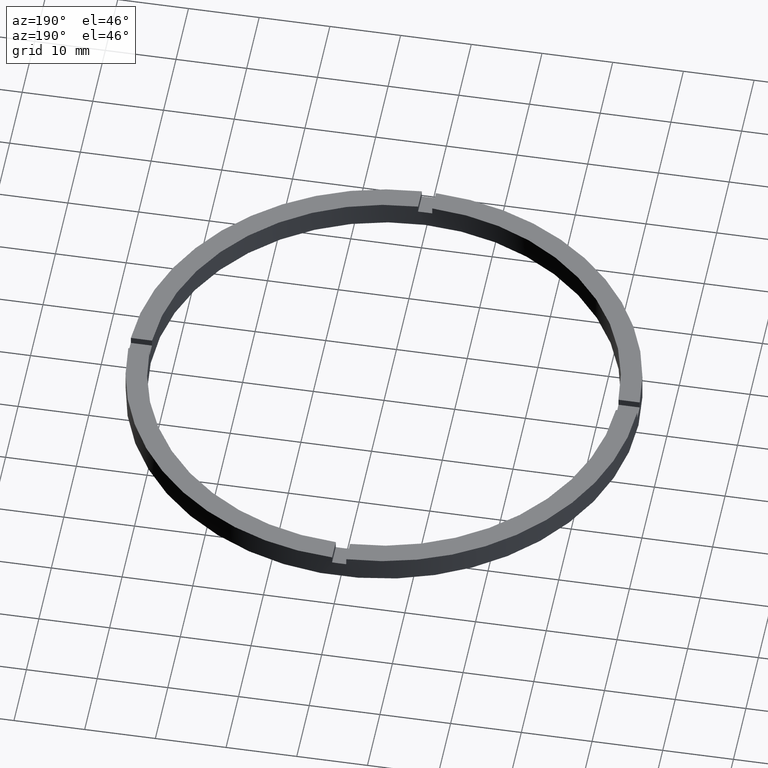
[diagram: clean part render]
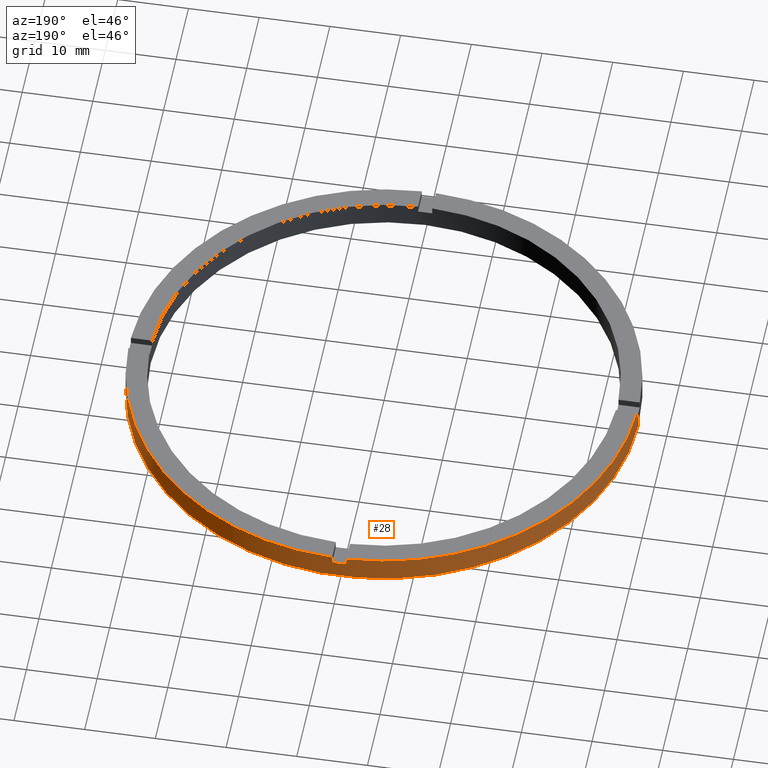
[diagram: same view with one face highlighted and labeled with its STEP entity id]
A machine part, auxiliary view. The second image highlights one B-rep face of the part: STEP entity #28.
In plain terms, the highlighted cylindrical surface (partial cylindrical patch) has radius 36 mm, axis along (-0, -0, -1).
Its self-contained STEP definition (entity closure, byte-faithful):
#4 = CARTESIAN_POINT ( 'NONE',  ( 0.000000000000000000, 0.000000000000000000, 2.500000000000000000 ) ) ;
#7 = CARTESIAN_POINT ( 'NONE',  ( 0.000000000000000000, 0.000000000000000000, 2.500000000000000000 ) ) ;
#14 = AXIS2_PLACEMENT_3D ( 'NONE', #195, #520, #364 ) ;
#16 = VECTOR ( 'NONE', #572, 1000.000000000000000 ) ;
#26 = LINE ( 'NONE', #672, #29 ) ;
#28 = ADVANCED_FACE ( 'NONE', ( #671 ), #126, .T. ) ;
#29 = VECTOR ( 'NONE', #751, 1000.000000000000000 ) ;
#36 = VERTEX_POINT ( 'NONE', #413 ) ;
#43 = DIRECTION ( 'NONE',  ( -0.000000000000000000, -0.000000000000000000, -1.000000000000000000 ) ) ;
#45 = VERTEX_POINT ( 'NONE', #705 ) ;
#48 = CARTESIAN_POINT ( 'NONE',  ( 0.000000000000000000, 0.000000000000000000, 3.500000000000000000 ) ) ;
#60 = LINE ( 'NONE', #779, #311 ) ;
#64 = LINE ( 'NONE', #729, #570 ) ;
#65 = DIRECTION ( 'NONE',  ( 1.000000000000000000, 0.000000000000000000, 0.000000000000000000 ) ) ;
#93 = DIRECTION ( 'NONE',  ( 0.000000000000000000, 0.000000000000000000, 1.000000000000000000 ) ) ;
#98 = DIRECTION ( 'NONE',  ( 1.000000000000000000, 0.000000000000000000, 0.000000000000000000 ) ) ;
#105 = ORIENTED_EDGE ( 'NONE', *, *, #264, .T. ) ;
#120 = DIRECTION ( 'NONE',  ( 1.000000000000000000, 0.000000000000000000, 0.000000000000000000 ) ) ;
#124 = CARTESIAN_POINT ( 'NONE',  ( -36.00000000000000000, 0.000000000000000000, 2.500000000000000000 ) ) ;
#126 = CYLINDRICAL_SURFACE ( 'NONE', #760, 36.00000000000000000 ) ;
#133 = AXIS2_PLACEMENT_3D ( 'NONE', #48, #363, #120 ) ;
#134 = ORIENTED_EDGE ( 'NONE', *, *, #521, .T. ) ;
#152 = ORIENTED_EDGE ( 'NONE', *, *, #497, .T. ) ;
#171 = CIRCLE ( 'NONE', #707, 36.00000000000000000 ) ;
#176 = VERTEX_POINT ( 'NONE', #367 ) ;
#177 = LINE ( 'NONE', #275, #701 ) ;
#195 = CARTESIAN_POINT ( 'NONE',  ( 0.000000000000000000, 0.000000000000000000, 3.500000000000000000 ) ) ;
#199 = CARTESIAN_POINT ( 'NONE',  ( -35.98610843089316091, 0.9999999999999729106, 3.500000000000000000 ) ) ;
#211 = ORIENTED_EDGE ( 'NONE', *, *, #597, .T. ) ;
#221 = CARTESIAN_POINT ( 'NONE',  ( 0.000000000000000000, 0.000000000000000000, 2.500000000000000000 ) ) ;
#224 = AXIS2_PLACEMENT_3D ( 'NONE', #397, #238, #98 ) ;
#238 = DIRECTION ( 'NONE',  ( 0.000000000000000000, 0.000000000000000000, 1.000000000000000000 ) ) ;
#245 = EDGE_CURVE ( 'NONE', #631, #176, #171, .T. ) ;
#264 = EDGE_CURVE ( 'NONE', #538, #45, #177, .T. ) ;
#269 = DIRECTION ( 'NONE',  ( 0.000000000000000000, 0.000000000000000000, 1.000000000000000000 ) ) ;
#274 = CIRCLE ( 'NONE', #133, 36.00000000000000000 ) ;
#275 = CARTESIAN_POINT ( 'NONE',  ( 0.9999999999999749090, 35.98610843089316091, 3.500000000000000000 ) ) ;
#286 = CARTESIAN_POINT ( 'NONE',  ( -1.000000000000025091, 35.98610843089315381, 3.500000000000000000 ) ) ;
#304 = DIRECTION ( 'NONE',  ( 1.000000000000000000, 0.000000000000000000, 0.000000000000000000 ) ) ;
#311 = VECTOR ( 'NONE', #43, 1000.000000000000000 ) ;
#315 = CIRCLE ( 'NONE', #629, 36.00000000000000000 ) ;
#333 = CARTESIAN_POINT ( 'NONE',  ( 0.9999999999999749090, 35.98610843089316091, 2.500000000000000000 ) ) ;
#347 = CARTESIAN_POINT ( 'NONE',  ( 36.00000000000000000, 4.408728476930470856E-15, 2.500000000000000000 ) ) ;
#352 = ORIENTED_EDGE ( 'NONE', *, *, #734, .F. ) ;
#354 = CARTESIAN_POINT ( 'NONE',  ( 35.98610843089316091, 0.9999999999998421263, 3.500000000000000000 ) ) ;
#363 = DIRECTION ( 'NONE',  ( 0.000000000000000000, 0.000000000000000000, 1.000000000000000000 ) ) ;
#364 = DIRECTION ( 'NONE',  ( 1.000000000000000000, 0.000000000000000000, 0.000000000000000000 ) ) ;
#366 = ORIENTED_EDGE ( 'NONE', *, *, #670, .F. ) ;
#367 = CARTESIAN_POINT ( 'NONE',  ( 35.98610843089316091, 0.9999999999998421263, 2.500000000000000000 ) ) ;
#373 = VERTEX_POINT ( 'NONE', #754 ) ;
#374 = ORIENTED_EDGE ( 'NONE', *, *, #767, .F. ) ;
#376 = EDGE_CURVE ( 'NONE', #604, #398, #706, .T. ) ;
#382 = DIRECTION ( 'NONE',  ( 0.000000000000000000, -0.000000000000000000, 1.000000000000000000 ) ) ;
#392 = VERTEX_POINT ( 'NONE', #199 ) ;
#397 = CARTESIAN_POINT ( 'NONE',  ( 0.000000000000000000, 0.000000000000000000, 0.000000000000000000 ) ) ;
#398 = VERTEX_POINT ( 'NONE', #124 ) ;
#401 = ORIENTED_EDGE ( 'NONE', *, *, #376, .F. ) ;
#413 = CARTESIAN_POINT ( 'NONE',  ( 35.98610843089316091, 0.9999999999998421263, 3.500000000000000000 ) ) ;
#422 = ORIENTED_EDGE ( 'NONE', *, *, #245, .F. ) ;
#490 = DIRECTION ( 'NONE',  ( 1.000000000000000000, 0.000000000000000000, 0.000000000000000000 ) ) ;
#497 = EDGE_CURVE ( 'NONE', #737, #373, #718, .T. ) ;
#513 = CARTESIAN_POINT ( 'NONE',  ( 0.000000000000000000, 0.000000000000000000, 3.500000000000000000 ) ) ;
#517 = CARTESIAN_POINT ( 'NONE',  ( -1.000000000000025091, 35.98610843089315381, 3.500000000000000000 ) ) ;
#520 = DIRECTION ( 'NONE',  ( 0.000000000000000000, 0.000000000000000000, 1.000000000000000000 ) ) ;
#521 = EDGE_CURVE ( 'NONE', #604, #392, #64, .T. ) ;
#525 = DIRECTION ( 'NONE',  ( -0.000000000000000000, -0.000000000000000000, -1.000000000000000000 ) ) ;
#538 = VERTEX_POINT ( 'NONE', #333 ) ;
#539 = VECTOR ( 'NONE', #525, 1000.000000000000000 ) ;
#546 = CIRCLE ( 'NONE', #14, 36.00000000000000000 ) ;
#555 = DIRECTION ( 'NONE',  ( -1.000000000000000000, 0.000000000000000000, 0.000000000000000000 ) ) ;
#557 = LINE ( 'NONE', #354, #539 ) ;
#570 = VECTOR ( 'NONE', #93, 1000.000000000000000 ) ;
#571 = LINE ( 'NONE', #517, #16 ) ;
#572 = DIRECTION ( 'NONE',  ( -0.000000000000000000, -0.000000000000000000, -1.000000000000000000 ) ) ;
#582 = DIRECTION ( 'NONE',  ( 0.000000000000000000, 0.000000000000000000, 1.000000000000000000 ) ) ;
#593 = ORIENTED_EDGE ( 'NONE', *, *, #655, .T. ) ;
#597 = EDGE_CURVE ( 'NONE', #648, #739, #571, .T. ) ;
#604 = VERTEX_POINT ( 'NONE', #768 ) ;
#610 = ORIENTED_EDGE ( 'NONE', *, *, #723, .F. ) ;
#620 = AXIS2_PLACEMENT_3D ( 'NONE', #221, #693, #304 ) ;
#628 = ORIENTED_EDGE ( 'NONE', *, *, #683, .T. ) ;
#629 = AXIS2_PLACEMENT_3D ( 'NONE', #4, #382, #65 ) ;
#631 = VERTEX_POINT ( 'NONE', #347 ) ;
#635 = EDGE_LOOP ( 'NONE', ( #422, #593, #152, #374, #401, #134, #610, #211, #352, #105, #366, #628 ) ) ;
#648 = VERTEX_POINT ( 'NONE', #286 ) ;
#655 = EDGE_CURVE ( 'NONE', #631, #737, #60, .T. ) ;
#670 = EDGE_CURVE ( 'NONE', #36, #45, #274, .T. ) ;
#671 = FACE_OUTER_BOUND ( 'NONE', #635, .T. ) ;
#672 = CARTESIAN_POINT ( 'NONE',  ( -36.00000000000000000, 0.000000000000000000, 3.500000000000000000 ) ) ;
#681 = CARTESIAN_POINT ( 'NONE',  ( -1.000000000000025091, 35.98610843089315381, 2.500000000000000000 ) ) ;
#683 = EDGE_CURVE ( 'NONE', #36, #176, #557, .T. ) ;
#693 = DIRECTION ( 'NONE',  ( 0.000000000000000000, 0.000000000000000000, 1.000000000000000000 ) ) ;
#701 = VECTOR ( 'NONE', #269, 1000.000000000000000 ) ;
#705 = CARTESIAN_POINT ( 'NONE',  ( 0.9999999999999749090, 35.98610843089316091, 3.500000000000000000 ) ) ;
#706 = CIRCLE ( 'NONE', #620, 36.00000000000000000 ) ;
#707 = AXIS2_PLACEMENT_3D ( 'NONE', #7, #582, #490 ) ;
#718 = CIRCLE ( 'NONE', #224, 36.00000000000000000 ) ;
#723 = EDGE_CURVE ( 'NONE', #648, #392, #546, .T. ) ;
#729 = CARTESIAN_POINT ( 'NONE',  ( -35.98610843089316091, 0.9999999999999729106, 3.500000000000000000 ) ) ;
#734 = EDGE_CURVE ( 'NONE', #538, #739, #315, .T. ) ;
#737 = VERTEX_POINT ( 'NONE', #783 ) ;
#739 = VERTEX_POINT ( 'NONE', #681 ) ;
#751 = DIRECTION ( 'NONE',  ( -0.000000000000000000, -0.000000000000000000, -1.000000000000000000 ) ) ;
#754 = CARTESIAN_POINT ( 'NONE',  ( -36.00000000000000000, 0.000000000000000000, 0.000000000000000000 ) ) ;
#760 = AXIS2_PLACEMENT_3D ( 'NONE', #513, #762, #555 ) ;
#762 = DIRECTION ( 'NONE',  ( -0.000000000000000000, -0.000000000000000000, -1.000000000000000000 ) ) ;
#767 = EDGE_CURVE ( 'NONE', #398, #373, #26, .T. ) ;
#768 = CARTESIAN_POINT ( 'NONE',  ( -35.98610843089316091, 0.9999999999999729106, 2.500000000000000000 ) ) ;
#779 = CARTESIAN_POINT ( 'NONE',  ( 36.00000000000000000, 4.408728476930470856E-15, 3.500000000000000000 ) ) ;
#783 = CARTESIAN_POINT ( 'NONE',  ( 36.00000000000000000, 4.408728476930470856E-15, 0.000000000000000000 ) ) ;